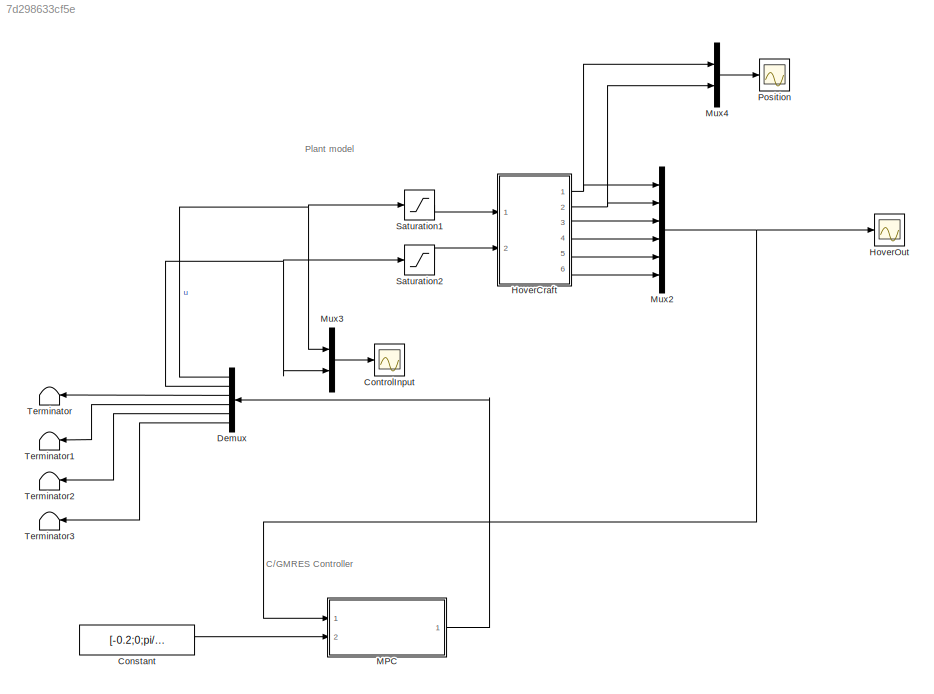
MODEL slx_7d298633cf5e
KIND model
CONFIG AbsTol = auto
CONFIG FixedStep = auto
CONFIG MaxStep = auto
CONFIG MinStep = auto
CONFIG RelTol = 1e-3
CONFIG SampleTimeConstraint = Unconstrained
CONFIG Solver = ode45
CONFIG SolverMode = Auto
CONFIG SolverName = ode45
CONFIG StartTime = 0.0
CONFIG StopTime = tsim
BLOCK [Constant] Constant
  Commented = on
  Value = [-0.2;0;pi/2;0;0;0]
BLOCK [Scope] ControlInput
  Floating = off
  LimitDataPoints = off
  NumInputPorts = 1
  Ports = [1]
  SampleInput = on
  SampleTime = 0.01
  SaveName = Output1
  SaveToWorkspace = on
  YMax = 0.35
  YMin = -0.125
  ZoomMode = yonly
BLOCK [Demux] Demux
  DisplayOption = bar
  Outputs = 6
  Ports = [1, 6]
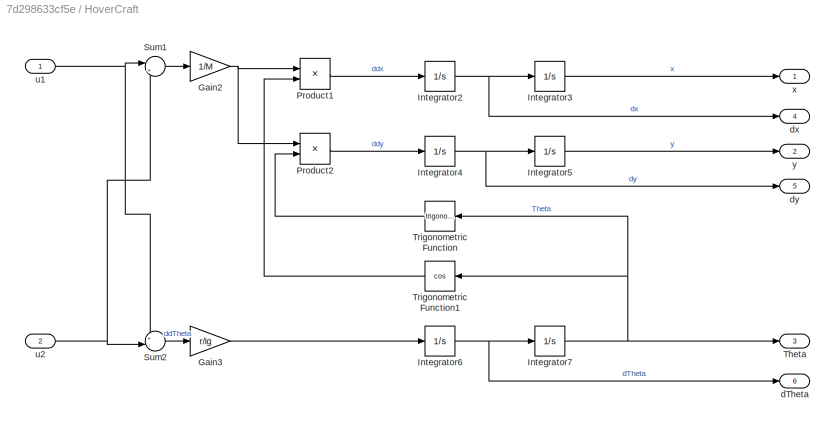
BLOCK [SubSystem] HoverCraft
  Ports = [2, 6]
  RequestExecContextInheritance = off
BLOCK [Gain] HoverCraft/Gain2
  Gain = 1/M
  OutDataTypeStr = Inherit: Inherit via internal rule
  ParamDataTypeStr = Inherit: Inherit via internal rule
  SaturateOnIntegerOverflow = off
BLOCK [Gain] HoverCraft/Gain3
  Gain = r/Ig
  OutDataTypeStr = Inherit: Inherit via internal rule
  ParamDataTypeStr = Inherit: Inherit via internal rule
  SaturateOnIntegerOverflow = off
BLOCK [Integrator] HoverCraft/Integrator2
  InitialCondition = sys.x0(4)
  Ports = [1, 1]
BLOCK [Integrator] HoverCraft/Integrator3
  InitialCondition = sys.x0(1)
  Ports = [1, 1]
BLOCK [Integrator] HoverCraft/Integrator4
  InitialCondition = sys.x0(5)
  Ports = [1, 1]
BLOCK [Integrator] HoverCraft/Integrator5
  InitialCondition = sys.x0(2)
  Ports = [1, 1]
BLOCK [Integrator] HoverCraft/Integrator6
  InitialCondition = sys.x0(6)
  Ports = [1, 1]
BLOCK [Integrator] HoverCraft/Integrator7
  InitialCondition = sys.x0(3)
  Ports = [1, 1]
BLOCK [Product] HoverCraft/Product1
  InputSameDT = off
  OutDataTypeStr = Inherit: Inherit via internal rule
  Ports = [2, 1]
  RndMeth = Floor
  SaturateOnIntegerOverflow = off
BLOCK [Product] HoverCraft/Product2
  InputSameDT = off
  OutDataTypeStr = Inherit: Inherit via internal rule
  Ports = [2, 1]
  RndMeth = Floor
  SaturateOnIntegerOverflow = off
BLOCK [Sum] HoverCraft/Sum1
  IconShape = round
  InputSameDT = off
  Inputs = |++
  OutDataTypeStr = Inherit: Inherit via internal rule
  Ports = [2, 1]
  SaturateOnIntegerOverflow = off
BLOCK [Sum] HoverCraft/Sum2
  IconShape = round
  InputSameDT = off
  Inputs = +-|
  OutDataTypeStr = Inherit: Inherit via internal rule
  Ports = [2, 1]
  SaturateOnIntegerOverflow = off
BLOCK [Outport] HoverCraft/Theta
  IconDisplay = Port number
  Port = 3
BLOCK [Trigonometry] HoverCraft/Trigonometric Function
  Ports = [1, 1]
BLOCK [Trigonometry] HoverCraft/Trigonometric Function1
  Operator = cos
  Ports = [1, 1]
BLOCK [Outport] HoverCraft/dTheta
  IconDisplay = Port number
  Port = 6
BLOCK [Outport] HoverCraft/dx
  IconDisplay = Port number
  Port = 4
BLOCK [Outport] HoverCraft/dy
  IconDisplay = Port number
  Port = 5
BLOCK [Inport] HoverCraft/u1
  IconDisplay = Port number
BLOCK [Inport] HoverCraft/u2
  IconDisplay = Port number
  Port = 2
BLOCK [Outport] HoverCraft/x
  IconDisplay = Port number
BLOCK [Outport] HoverCraft/y
  IconDisplay = Port number
  Port = 2
BLOCK [Scope] HoverOut
  Floating = off
  LimitDataPoints = off
  NumInputPorts = 1
  Ports = [1]
  SampleInput = on
  SampleTime = 0.01
  SaveName = HoverOut
  SaveToWorkspace = on
  YMax = 0.5
  YMin = -2.25
  ZoomMode = yonly
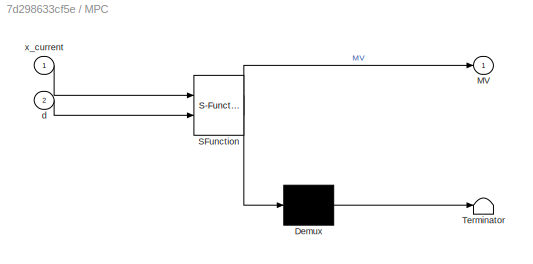
BLOCK [SubSystem] MPC
  ErrorFcn = Stateflow.Translate.translate
  PermitHierarchicalResolution = ExplicitOnly
  Ports = [2, 1]
  RequestExecContextInheritance = off
  SFBlockType = MATLAB Function
  SystemSampleTime = dSamplingPeriod
  TreatAsAtomicUnit = on
BLOCK [Demux] MPC/ Demux 
  Outputs = 1
  Ports = [1, 1]
BLOCK [S-Function] MPC/ SFunction 
  EnableBusSupport = on
  FunctionName = sf_sfun
  Parameters = cgmres,dSamplingPeriod,sys
  PortCounts = [2 2]
  Ports = [2, 2]
  Tag = Stateflow S-Function CGMRES 2
BLOCK [Terminator] MPC/ Terminator 
BLOCK [Outport] MPC/MV
  IconDisplay = Port number
BLOCK [Inport] MPC/d
  IconDisplay = Port number
  Port = 2
BLOCK [Inport] MPC/x_current
  IconDisplay = Port number
BLOCK [Mux] Mux2
  DisplayOption = bar
  Inputs = 6
  Ports = [6, 1]
BLOCK [Mux] Mux3
  DisplayOption = bar
  Inputs = 2
  Ports = [2, 1]
BLOCK [Mux] Mux4
  DisplayOption = bar
  Inputs = 2
  Ports = [2, 1]
BLOCK [Scope] Position
  Floating = off
  LimitDataPoints = off
  NumInputPorts = 1
  Ports = [1]
  SampleInput = on
  SampleTime = 0.01
  SaveName = Output2
  TimeRange = 20
  YMax = 0.5
  YMin = -6
  ZoomMode = xonly
BLOCK [Saturate] Saturation1
  InputPortMap = u0
  LowerLimit = -0.121
  Ports = [1, 1]
  UpperLimit = 0.342
BLOCK [Saturate] Saturation2
  InputPortMap = u0
  LowerLimit = -0.121
  Ports = [1, 1]
  UpperLimit = 0.342
BLOCK [Terminator] Terminator
BLOCK [Terminator] Terminator1
BLOCK [Terminator] Terminator2
BLOCK [Terminator] Terminator3
ANNOTATION (root): C/GMRES Controller
ANNOTATION (root): Plant model
LINE Constant:1 -> MPC:2
NET Demux:1 -> Mux3:1, Saturation1:1
NET Demux:2 -> Mux3:2, Saturation2:1
LINE Demux:3 -> Terminator:1
LINE Demux:4 -> Terminator1:1
LINE Demux:5 -> Terminator2:1
LINE Demux:6 -> Terminator3:1
NET HoverCraft/Gain2:1 -> HoverCraft/Product1:1, HoverCraft/Product2:1
LINE HoverCraft/Gain3:1 -> HoverCraft/Integrator6:1
NET HoverCraft/Integrator2:1 -> HoverCraft/Integrator3:1, HoverCraft/dx:1
LINE HoverCraft/Integrator3:1 -> HoverCraft/x:1
NET HoverCraft/Integrator4:1 -> HoverCraft/Integrator5:1, HoverCraft/dy:1
LINE HoverCraft/Integrator5:1 -> HoverCraft/y:1
NET HoverCraft/Integrator6:1 -> HoverCraft/Integrator7:1, HoverCraft/dTheta:1
NET HoverCraft/Integrator7:1 -> HoverCraft/Theta:1, HoverCraft/Trigonometric Function1:1, HoverCraft/Trigonometric Function:1
LINE HoverCraft/Product1:1 -> HoverCraft/Integrator2:1
LINE HoverCraft/Product2:1 -> HoverCraft/Integrator4:1
LINE HoverCraft/Sum1:1 -> HoverCraft/Gain2:1
LINE HoverCraft/Sum2:1 -> HoverCraft/Gain3:1
LINE HoverCraft/Trigonometric Function1:1 -> HoverCraft/Product1:2
LINE HoverCraft/Trigonometric Function:1 -> HoverCraft/Product2:2
NET HoverCraft/u1:1 -> HoverCraft/Sum1:1, HoverCraft/Sum2:1
NET HoverCraft/u2:1 -> HoverCraft/Sum1:2, HoverCraft/Sum2:2
NET HoverCraft:1 -> Mux2:1, Mux4:1
NET HoverCraft:2 -> Mux2:2, Mux4:2
LINE HoverCraft:3 -> Mux2:3
LINE HoverCraft:4 -> Mux2:4
LINE HoverCraft:5 -> Mux2:5
LINE HoverCraft:6 -> Mux2:6
LINE MPC:1 -> Demux:1
NET Mux2:1 -> HoverOut:1, MPC:1
LINE Mux3:1 -> ControlInput:1
LINE Mux4:1 -> Position:1
LINE Saturation1:1 -> HoverCraft:1
LINE Saturation2:1 -> HoverCraft:2
note: NET lines group one-source signal fan-out (src -> all destinations, sorted); 1:1 wires keep LINE
CHART MPC states=1 transitions=1
  STATE_LABEL 'eML_blk_kernel()'
  STATE_LABEL 'SCRIPT:\nfunction MV = MPC( x_current, d, sys, cgmres, dSamplingPeriod )\n    %#codegen\n    persistent flag; % 初回フラグ\n    persistent du; % 操作量の変化量（前回値）\n    persistent u; % 操作量（前回値）\n    persistent T; % 予測区間\n    \n    if ( isempty( flag ) )\n        flag = 0;\n    end\n    \n    if ( isempty( du ) )\n        du = zeros( cgmres.len_u * cgmres.dv, 1 );\n    end\n    \n    if ( isempty( u ) )\n        u = zeros( cg...<+480ch>'
